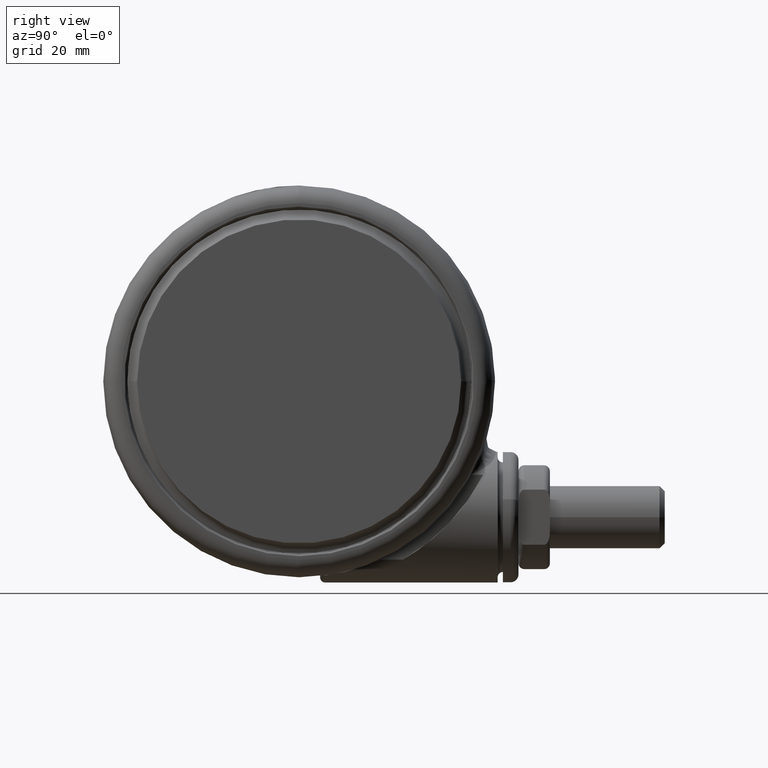
[diagram: clean part render]
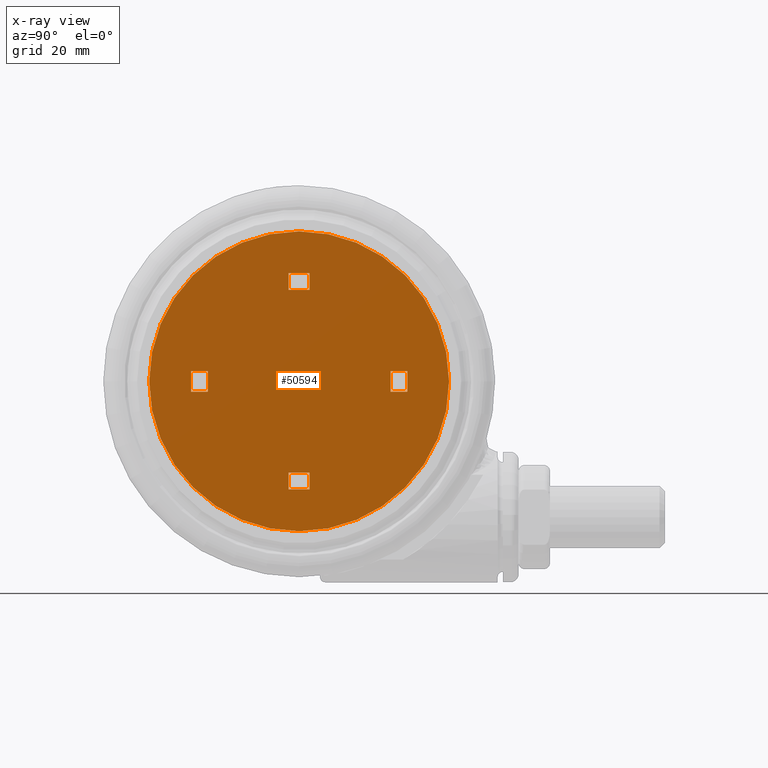
[diagram: x-ray — body ghosted, one internal face saturated and labeled with its STEP entity id]
A machine part, right view, then the same camera in x-ray: the body is ghosted and one INTERNAL B-rep face — a face not visible from any outside direction — is saturated and labeled: STEP entity #50594.
In plain terms, the highlighted planar face has unit normal (-1, 0, 0).
Its self-contained STEP definition (entity closure, byte-faithful):
#1830 = AXIS2_PLACEMENT_3D ( 'NONE', #12123, #43432, #16627 ) ;
#1837 = CARTESIAN_POINT ( 'NONE',  ( 9.399703237988882500E-014, -28.69999999999999900, -46.19999999999994600 ) ) ;
#1918 = CARTESIAN_POINT ( 'NONE',  ( -9.887081773446530800E-014, 28.69999999999999900, -46.19999999999994600 ) ) ;
#2020 = CARTESIAN_POINT ( 'NONE',  ( 19.70000000000000600, -1.999999999999935400, -46.19999999999994600 ) ) ;
#2139 = VECTOR ( 'NONE', #38688, 1000.000000000000000 ) ;
#2286 = EDGE_LOOP ( 'NONE', ( #17590, #45048, #52646, #42407 ) ) ;
#2431 = FACE_BOUND ( 'NONE', #13808, .T. ) ;
#2625 = EDGE_CURVE ( 'NONE', #50378, #53370, #2801, .T. ) ;
#2801 = LINE ( 'NONE', #49232, #49007 ) ;
#2807 = CARTESIAN_POINT ( 'NONE',  ( 20.70000000000000600, -1.999999999999932500, -46.19999999999994600 ) ) ;
#3712 = LINE ( 'NONE', #21289, #27532 ) ;
#3806 = VECTOR ( 'NONE', #8100, 1000.000000000000000 ) ;
#4190 = CARTESIAN_POINT ( 'NONE',  ( -17.50000000000000700, 1.999999999999942700, -46.19999999999994600 ) ) ;
#4461 = CARTESIAN_POINT ( 'NONE',  ( -1.999999999999997800, 20.69999999999999200, -46.19999999999994600 ) ) ;
#4578 = CARTESIAN_POINT ( 'NONE',  ( 1.999999999999852600, -20.69999999999999200, -46.19999999999994600 ) ) ;
#4714 = VERTEX_POINT ( 'NONE', #4461 ) ;
#6024 = CARTESIAN_POINT ( 'NONE',  ( 2.000000000000000400, 19.70000000000000600, -46.19999999999994600 ) ) ;
#6224 = CARTESIAN_POINT ( 'NONE',  ( 0.0000000000000000000, 0.0000000000000000000, -46.19999999999994600 ) ) ;
#6271 = EDGE_LOOP ( 'NONE', ( #30383, #41236 ) ) ;
#6362 = VERTEX_POINT ( 'NONE', #24754 ) ;
#6522 = DIRECTION ( 'NONE',  ( 1.000000000000000000, 3.636558646806045300E-015, 0.0000000000000000000 ) ) ;
#7047 = CARTESIAN_POINT ( 'NONE',  ( 2.000000000000002200, 20.70000000000000600, -46.19999999999994600 ) ) ;
#7684 = EDGE_CURVE ( 'NONE', #51021, #39488, #45791, .T. ) ;
#7701 = VECTOR ( 'NONE', #12128, 1000.000000000000000 ) ;
#8100 = DIRECTION ( 'NONE',  ( 1.000000000000000000, 3.636558646806045300E-015, 0.0000000000000000000 ) ) ;
#8164 = LINE ( 'NONE', #33888, #30593 ) ;
#8328 = CARTESIAN_POINT ( 'NONE',  ( -1.999999999999997300, 17.49999999999999600, -46.19999999999994600 ) ) ;
#9159 = VERTEX_POINT ( 'NONE', #1918 ) ;
#9433 = CARTESIAN_POINT ( 'NONE',  ( -17.49999999999999600, -2.000000000000057300, -46.19999999999994600 ) ) ;
#9574 = CARTESIAN_POINT ( 'NONE',  ( 19.69999999999999200, 2.000000000000064800, -46.19999999999994600 ) ) ;
#9967 = LINE ( 'NONE', #9574, #56224 ) ;
#10168 = LINE ( 'NONE', #55495, #57849 ) ;
#10638 = VECTOR ( 'NONE', #6522, 1000.000000000000000 ) ;
#10734 = DIRECTION ( 'NONE',  ( 3.275157922644210200E-015, -1.000000000000000000, 0.0000000000000000000 ) ) ;
#11441 = CARTESIAN_POINT ( 'NONE',  ( 1.999999999999859400, -19.69999999999999200, -46.19999999999994600 ) ) ;
#11681 = CARTESIAN_POINT ( 'NONE',  ( 17.50000000000000700, -1.999999999999942700, -46.19999999999994600 ) ) ;
#12123 = CARTESIAN_POINT ( 'NONE',  ( 0.0000000000000000000, 0.0000000000000000000, -46.19999999999994600 ) ) ;
#12128 = DIRECTION ( 'NONE',  ( -1.000000000000000000, 2.163234161989251100E-016, -0.0000000000000000000 ) ) ;
#13069 = CARTESIAN_POINT ( 'NONE',  ( 1.999999999999877200, -17.49999999999999600, -46.19999999999994600 ) ) ;
#13789 = ORIENTED_EDGE ( 'NONE', *, *, #38767, .T. ) ;
#13808 = EDGE_LOOP ( 'NONE', ( #33436, #24388, #50524, #29718 ) ) ;
#14353 = FACE_BOUND ( 'NONE', #2286, .T. ) ;
#15077 = ORIENTED_EDGE ( 'NONE', *, *, #41913, .F. ) ;
#15085 = EDGE_CURVE ( 'NONE', #50378, #32997, #50985, .T. ) ;
#15755 = FACE_BOUND ( 'NONE', #42249, .T. ) ;
#16456 = VECTOR ( 'NONE', #38265, 1000.000000000000000 ) ;
#16627 = DIRECTION ( 'NONE',  ( 3.275157922644210200E-015, -1.000000000000000000, 0.0000000000000000000 ) ) ;
#17083 = VERTEX_POINT ( 'NONE', #1837 ) ;
#17124 = LINE ( 'NONE', #43933, #3806 ) ;
#17590 = ORIENTED_EDGE ( 'NONE', *, *, #7684, .F. ) ;
#19637 = DIRECTION ( 'NONE',  ( -3.275157922644210200E-015, 1.000000000000000000, -0.0000000000000000000 ) ) ;
#19788 = VERTEX_POINT ( 'NONE', #8328 ) ;
#20209 = CARTESIAN_POINT ( 'NONE',  ( 0.0000000000000000000, 0.0000000000000000000, -46.19999999999994600 ) ) ;
#20804 = ORIENTED_EDGE ( 'NONE', *, *, #15085, .F. ) ;
#21289 = CARTESIAN_POINT ( 'NONE',  ( -2.000000000000140300, -19.70000000000000600, -46.19999999999994600 ) ) ;
#21471 = DIRECTION ( 'NONE',  ( -1.000000000000000000, -3.636558646806045300E-015, 0.0000000000000000000 ) ) ;
#21473 = ORIENTED_EDGE ( 'NONE', *, *, #2625, .T. ) ;
#21501 = LINE ( 'NONE', #32913, #30583 ) ;
#21851 = EDGE_CURVE ( 'NONE', #33658, #32445, #21501, .T. ) ;
#22008 = VECTOR ( 'NONE', #32635, 1000.000000000000000 ) ;
#23862 = EDGE_CURVE ( 'NONE', #31365, #6362, #31164, .T. ) ;
#24388 = ORIENTED_EDGE ( 'NONE', *, *, #34851, .T. ) ;
#24724 = DIRECTION ( 'NONE',  ( 3.275157922644210200E-015, -1.000000000000000000, 0.0000000000000000000 ) ) ;
#24754 = CARTESIAN_POINT ( 'NONE',  ( -2.000000000000147400, -20.70000000000000600, -46.19999999999994600 ) ) ;
#25372 = AXIS2_PLACEMENT_3D ( 'NONE', #20209, #51494, #24724 ) ;
#25446 = CARTESIAN_POINT ( 'NONE',  ( -1.999999999999997300, 17.49999999999999600, -46.19999999999994600 ) ) ;
#25993 = LINE ( 'NONE', #38487, #2139 ) ;
#27217 = VECTOR ( 'NONE', #21471, 1000.000000000000000 ) ;
#27491 = EDGE_CURVE ( 'NONE', #31365, #48884, #50733, .T. ) ;
#27532 = VECTOR ( 'NONE', #48050, 1000.000000000000000 ) ;
#27670 = FACE_BOUND ( 'NONE', #32184, .T. ) ;
#27741 = ORIENTED_EDGE ( 'NONE', *, *, #33664, .T. ) ;
#28807 = EDGE_CURVE ( 'NONE', #49396, #6362, #3712, .T. ) ;
#29718 = ORIENTED_EDGE ( 'NONE', *, *, #23862, .T. ) ;
#30383 = ORIENTED_EDGE ( 'NONE', *, *, #38289, .T. ) ;
#30421 = ORIENTED_EDGE ( 'NONE', *, *, #40542, .F. ) ;
#30583 = VECTOR ( 'NONE', #19637, 1000.000000000000000 ) ;
#30593 = VECTOR ( 'NONE', #51923, 1000.000000000000000 ) ;
#30726 = ORIENTED_EDGE ( 'NONE', *, *, #52295, .F. ) ;
#31164 = LINE ( 'NONE', #42483, #44468 ) ;
#31365 = VERTEX_POINT ( 'NONE', #4578 ) ;
#32184 = EDGE_LOOP ( 'NONE', ( #30726, #13789, #15077, #39127 ) ) ;
#32445 = VERTEX_POINT ( 'NONE', #54783 ) ;
#32635 = DIRECTION ( 'NONE',  ( -1.450773079629095900E-016, 1.000000000000000000, 0.0000000000000000000 ) ) ;
#32913 = CARTESIAN_POINT ( 'NONE',  ( 17.49999999999999600, 2.000000000000057300, -46.19999999999994600 ) ) ;
#32997 = VERTEX_POINT ( 'NONE', #50339 ) ;
#33157 = DIRECTION ( 'NONE',  ( 3.275157922644210200E-015, -1.000000000000000000, -0.0000000000000000000 ) ) ;
#33436 = ORIENTED_EDGE ( 'NONE', *, *, #28807, .F. ) ;
#33658 = VERTEX_POINT ( 'NONE', #11681 ) ;
#33664 = EDGE_CURVE ( 'NONE', #47899, #32997, #25993, .T. ) ;
#33888 = CARTESIAN_POINT ( 'NONE',  ( 2.000000000000002200, 20.70000000000000600, -46.19999999999994600 ) ) ;
#34668 = EDGE_CURVE ( 'NONE', #9159, #17083, #39970, .T. ) ;
#34756 = CARTESIAN_POINT ( 'NONE',  ( -19.70000000000000600, 1.999999999999935400, -46.19999999999994600 ) ) ;
#34851 = EDGE_CURVE ( 'NONE', #49396, #48884, #52552, .T. ) ;
#35952 = DIRECTION ( 'NONE',  ( 3.275157922644210200E-015, -1.000000000000000000, -0.0000000000000000000 ) ) ;
#36187 = DIRECTION ( 'NONE',  ( 1.000000000000000000, -7.199286093885191400E-015, -0.0000000000000000000 ) ) ;
#37554 = DIRECTION ( 'NONE',  ( -0.0000000000000000000, 0.0000000000000000000, 1.000000000000000000 ) ) ;
#37972 = DIRECTION ( 'NONE',  ( -1.000000000000000000, 7.199286093885191400E-015, -0.0000000000000000000 ) ) ;
#38165 = CARTESIAN_POINT ( 'NONE',  ( 2.000000000000002700, 17.50000000000000700, -46.19999999999994600 ) ) ;
#38166 = FACE_OUTER_BOUND ( 'NONE', #6271, .T. ) ;
#38265 = DIRECTION ( 'NONE',  ( 6.837885369723349300E-015, 1.000000000000000000, 0.0000000000000000000 ) ) ;
#38289 = EDGE_CURVE ( 'NONE', #17083, #9159, #39582, .T. ) ;
#38415 = EDGE_CURVE ( 'NONE', #4714, #19788, #56396, .T. ) ;
#38487 = CARTESIAN_POINT ( 'NONE',  ( -20.70000000000000600, 1.999999999999932500, -46.19999999999994600 ) ) ;
#38688 = DIRECTION ( 'NONE',  ( -3.275157922644210200E-015, 1.000000000000000000, -0.0000000000000000000 ) ) ;
#38767 = EDGE_CURVE ( 'NONE', #51773, #54522, #10168, .T. ) ;
#39127 = ORIENTED_EDGE ( 'NONE', *, *, #21851, .T. ) ;
#39488 = VERTEX_POINT ( 'NONE', #7047 ) ;
#39582 = CIRCLE ( 'NONE', #53067, 28.69999999999999900 ) ;
#39970 = CIRCLE ( 'NONE', #1830, 28.69999999999999900 ) ;
#40542 = EDGE_CURVE ( 'NONE', #47899, #53370, #17124, .T. ) ;
#40656 = VECTOR ( 'NONE', #36187, 1000.000000000000000 ) ;
#40897 = DIRECTION ( 'NONE',  ( -1.000000000000000000, -3.636558646806045300E-015, 0.0000000000000000000 ) ) ;
#41236 = ORIENTED_EDGE ( 'NONE', *, *, #34668, .T. ) ;
#41913 = EDGE_CURVE ( 'NONE', #33658, #54522, #46347, .T. ) ;
#42249 = EDGE_LOOP ( 'NONE', ( #30421, #27741, #20804, #21473 ) ) ;
#42407 = ORIENTED_EDGE ( 'NONE', *, *, #55997, .T. ) ;
#42483 = CARTESIAN_POINT ( 'NONE',  ( -2.000000000000147400, -20.70000000000000600, -46.19999999999994600 ) ) ;
#43432 = DIRECTION ( 'NONE',  ( -0.0000000000000000000, 0.0000000000000000000, 1.000000000000000000 ) ) ;
#43933 = CARTESIAN_POINT ( 'NONE',  ( -19.69999999999999200, -2.000000000000064800, -46.19999999999994600 ) ) ;
#44468 = VECTOR ( 'NONE', #37972, 1000.000000000000000 ) ;
#44470 = VECTOR ( 'NONE', #56942, 1000.000000000000000 ) ;
#45048 = ORIENTED_EDGE ( 'NONE', *, *, #53601, .T. ) ;
#45173 = CARTESIAN_POINT ( 'NONE',  ( 1.999999999999877200, -17.49999999999999600, -46.19999999999994600 ) ) ;
#45286 = CARTESIAN_POINT ( 'NONE',  ( -20.69999999999999200, -2.000000000000067500, -46.19999999999994600 ) ) ;
#45791 = LINE ( 'NONE', #6024, #22008 ) ;
#45928 = LINE ( 'NONE', #25446, #7701 ) ;
#46347 = LINE ( 'NONE', #2020, #10638 ) ;
#47899 = VERTEX_POINT ( 'NONE', #45286 ) ;
#48050 = DIRECTION ( 'NONE',  ( -6.837885369723349300E-015, -1.000000000000000000, 0.0000000000000000000 ) ) ;
#48884 = VERTEX_POINT ( 'NONE', #13069 ) ;
#49007 = VECTOR ( 'NONE', #35952, 1000.000000000000000 ) ;
#49232 = CARTESIAN_POINT ( 'NONE',  ( -17.49999999999999600, -2.000000000000057300, -46.19999999999994600 ) ) ;
#49396 = VERTEX_POINT ( 'NONE', #52940 ) ;
#49766 = CARTESIAN_POINT ( 'NONE',  ( 20.69999999999999200, 2.000000000000067500, -46.19999999999994600 ) ) ;
#50339 = CARTESIAN_POINT ( 'NONE',  ( -20.70000000000000600, 1.999999999999932500, -46.19999999999994600 ) ) ;
#50378 = VERTEX_POINT ( 'NONE', #4190 ) ;
#50524 = ORIENTED_EDGE ( 'NONE', *, *, #27491, .F. ) ;
#50594 = ADVANCED_FACE ( 'NONE', ( #38166, #27670, #15755, #14353, #2431 ), #51296, .F. ) ;
#50733 = LINE ( 'NONE', #11441, #16456 ) ;
#50985 = LINE ( 'NONE', #34756, #27217 ) ;
#51021 = VERTEX_POINT ( 'NONE', #38165 ) ;
#51296 = PLANE ( 'NONE',  #25372 ) ;
#51494 = DIRECTION ( 'NONE',  ( 0.0000000000000000000, -0.0000000000000000000, -1.000000000000000000 ) ) ;
#51773 = VERTEX_POINT ( 'NONE', #49766 ) ;
#51923 = DIRECTION ( 'NONE',  ( 1.000000000000000000, -2.163234161989251100E-016, -0.0000000000000000000 ) ) ;
#52228 = CARTESIAN_POINT ( 'NONE',  ( -1.999999999999999600, 19.69999999999999200, -46.19999999999994600 ) ) ;
#52295 = EDGE_CURVE ( 'NONE', #51773, #32445, #9967, .T. ) ;
#52552 = LINE ( 'NONE', #45173, #40656 ) ;
#52646 = ORIENTED_EDGE ( 'NONE', *, *, #38415, .F. ) ;
#52940 = CARTESIAN_POINT ( 'NONE',  ( -2.000000000000122600, -17.50000000000000700, -46.19999999999994600 ) ) ;
#53067 = AXIS2_PLACEMENT_3D ( 'NONE', #6224, #37554, #10734 ) ;
#53370 = VERTEX_POINT ( 'NONE', #9433 ) ;
#53601 = EDGE_CURVE ( 'NONE', #51021, #19788, #45928, .T. ) ;
#54522 = VERTEX_POINT ( 'NONE', #2807 ) ;
#54783 = CARTESIAN_POINT ( 'NONE',  ( 17.49999999999999600, 2.000000000000057300, -46.19999999999994600 ) ) ;
#55495 = CARTESIAN_POINT ( 'NONE',  ( 20.70000000000000600, -1.999999999999932500, -46.19999999999994600 ) ) ;
#55997 = EDGE_CURVE ( 'NONE', #4714, #39488, #8164, .T. ) ;
#56224 = VECTOR ( 'NONE', #40897, 1000.000000000000000 ) ;
#56396 = LINE ( 'NONE', #52228, #44470 ) ;
#56942 = DIRECTION ( 'NONE',  ( 1.450773079629095900E-016, -1.000000000000000000, 0.0000000000000000000 ) ) ;
#57849 = VECTOR ( 'NONE', #33157, 1000.000000000000000 ) ;